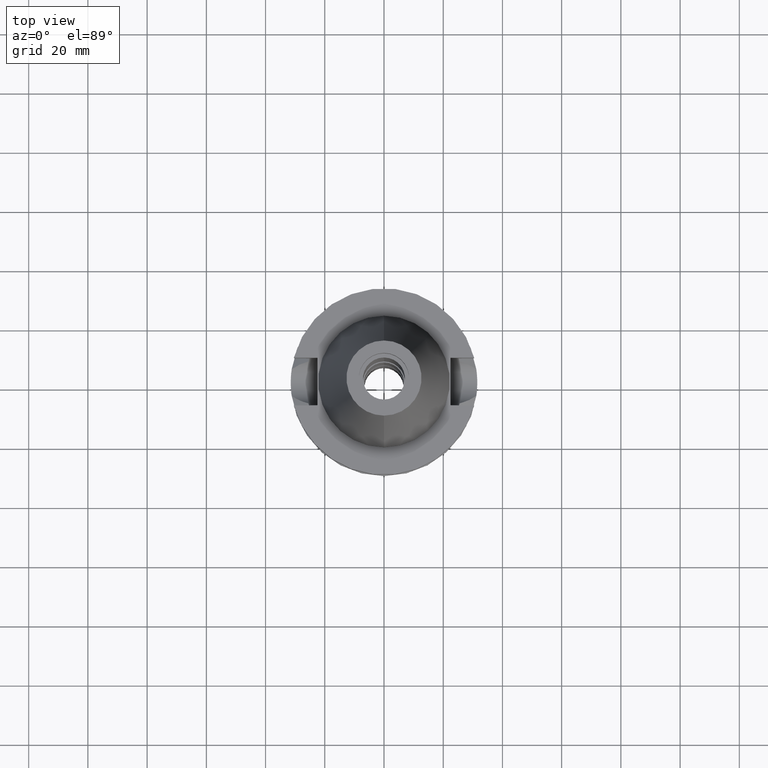
[diagram: clean part render]
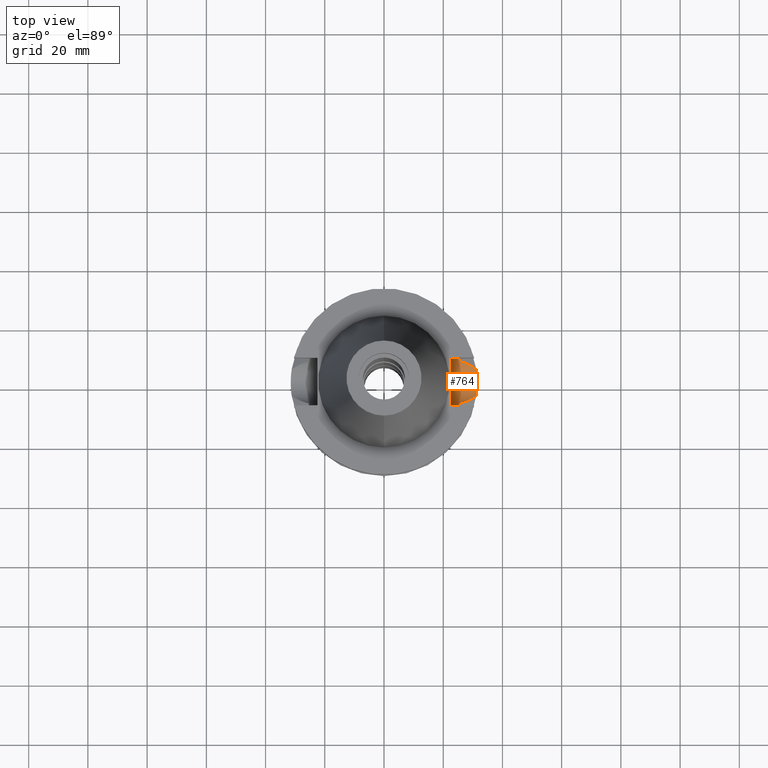
[diagram: same view with one face highlighted and labeled with its STEP entity id]
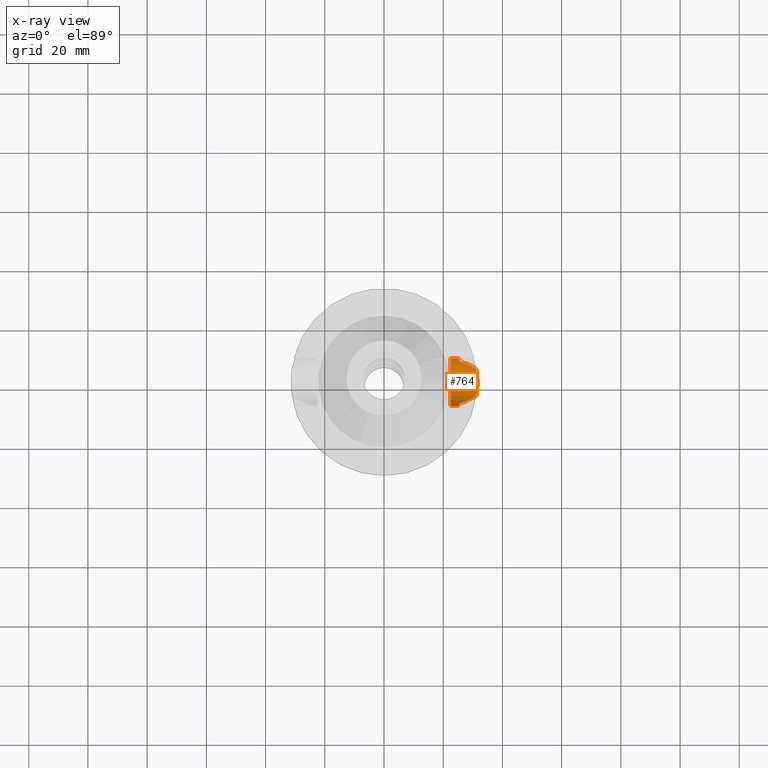
[diagram: x-ray of the same camera — body ghosted, the highlighted face saturated]
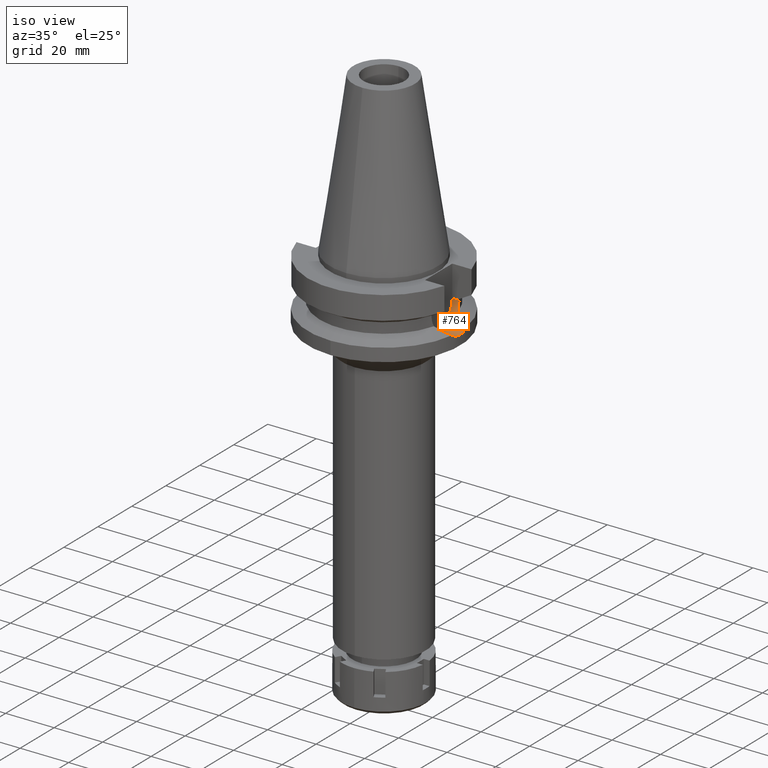
[diagram: same view with one face highlighted and labeled with its STEP entity id]
A machine part, top view. The second image highlights one B-rep face of the part: STEP entity #764.
The next image is the same camera in x-ray: the body ghosted, the highlighted face saturated — about 0% of this face is hidden behind the body in this view.
A second angle (iso view) of the same face is appended — the face is thin or edge-on in the first view.
In plain terms, the highlighted cylindrical surface (edge-blend (fillet) strip) has radius 8.05 mm, axis along (1, 0, 0).
Its self-contained STEP definition (entity closure, byte-faithful):
#15 = CARTESIAN_POINT ( 'NONE',  ( 25.53175183775000079, 7.097862220092999941, -18.74774300138999905 ) ) ;
#54 = CARTESIAN_POINT ( 'NONE',  ( 31.47112637481176023, -1.555232884586633446, -22.89002501789733302 ) ) ;
#62 = B_SPLINE_CURVE_WITH_KNOTS ( 'NONE', 3,
 ( #1560, #1265, #1227, #2415, #2399, #121, #674, #2681, #3191, #1762, #3535, #1483, #999, #2667, #2139, #153 ),
 .UNSPECIFIED., .F., .F.,
 ( 4, 2, 2, 1, 1, 1, 1, 2, 2, 4 ),
 ( 0.0000000000000000000, 0.2500000000000198730, 0.3750000000000299205, 0.4375000000000353606, 0.4687500000000382472, 0.4843750000000391354, 0.4921875000000386913, 0.4960937500000388023, 0.5000000000000389688, 1.000000000000000000 ),
 .UNSPECIFIED. ) ;
#85 = CARTESIAN_POINT ( 'NONE',  ( 25.24772266957999989, -8.050000000000000711, -15.27000127552688902 ) ) ;
#101 = B_SPLINE_CURVE_WITH_KNOTS ( 'NONE', 3,
 ( #986, #643, #3488, #1269, #3155, #2403, #2347, #1824, #3523, #1770, #2651, #950, #2611, #3443, #1255 ),
 .UNSPECIFIED., .F., .F.,
 ( 4, 2, 2, 1, 1, 1, 2, 2, 4 ),
 ( 0.0000000000000000000, 0.2500000000000069389, 0.3750000000000104361, 0.4375000000000123790, 0.4687500000000129341, 0.4843750000000133782, 0.4921875000000133227, 0.5000000000000132117, 1.000000000000000000 ),
 .UNSPECIFIED. ) ;
#121 = CARTESIAN_POINT ( 'NONE',  ( 29.21085116972555795, 5.704192111296421785, -20.63084312565968759 ) ) ;
#125 = CARTESIAN_POINT ( 'NONE',  ( 31.17899877608999759, -4.485536235554000051, -21.63449434733000132 ) ) ;
#140 = CARTESIAN_POINT ( 'NONE',  ( 25.32844325893252702, 7.792538688759799825, -16.96970524096439448 ) ) ;
#142 = DIRECTION ( 'NONE',  ( 0.0000000000000000000, 1.000000000000000000, 0.0000000000000000000 ) ) ;
#153 = CARTESIAN_POINT ( 'NONE',  ( 25.53175183775000079, 7.097862220092999941, -18.74774300138999905 ) ) ;
#195 = CARTESIAN_POINT ( 'NONE',  ( 25.48481820018147914, 7.266687417059683796, -18.43221401827393890 ) ) ;
#239 = CARTESIAN_POINT ( 'NONE',  ( 25.31205759391835386, -7.845621557329836016, -16.75326793494518540 ) ) ;
#247 = ORIENTED_EDGE ( 'NONE', *, *, #2168, .T. ) ;
#261 = VERTEX_POINT ( 'NONE', #575 ) ;
#309 = CARTESIAN_POINT ( 'NONE',  ( 25.29454717857531776, -7.902012029789245773, -16.48868902742446707 ) ) ;
#325 = VERTEX_POINT ( 'NONE', #668 ) ;
#345 = CARTESIAN_POINT ( 'NONE',  ( 29.65997400124294359, -5.506722762159368401, -20.86030669506162738 ) ) ;
#347 = CARTESIAN_POINT ( 'NONE',  ( 31.50000000000000000, 0.0000000000000000000, -23.00000000000000000 ) ) ;
#348 = ORIENTED_EDGE ( 'NONE', *, *, #888, .T. ) ;
#358 = CARTESIAN_POINT ( 'NONE',  ( 25.24772266958000344, 8.050000000000000711, -14.94999999999999929 ) ) ;
#396 = CARTESIAN_POINT ( 'NONE',  ( 25.33292553851903151, 7.777985707518505265, -17.02558215514781992 ) ) ;
#421 = DIRECTION ( 'NONE',  ( -1.000000000000000000, -1.551559937893000172E-14, 0.0000000000000000000 ) ) ;
#477 = CARTESIAN_POINT ( 'NONE',  ( 25.44392473217112283, 7.408251102527441567, -18.11706870839242001 ) ) ;
#549 = B_SPLINE_CURVE_WITH_KNOTS ( 'NONE', 3,
 ( #2033, #1991, #590, #1718, #2831, #1748, #2561, #2860, #2296, #2311, #3125, #610, #345, #2973, #125 ),
 .UNSPECIFIED., .F., .F.,
 ( 4, 2, 2, 1, 1, 1, 2, 2, 4 ),
 ( 0.0000000000000000000, 0.2500000000000026090, 0.3750000000000038858, 0.4375000000000052180, 0.4687500000000055511, 0.4843750000000054956, 0.4921875000000055511, 0.5000000000000055511, 1.000000000000000000 ),
 .UNSPECIFIED. ) ;
#575 = CARTESIAN_POINT ( 'NONE',  ( 25.24772266958000344, 8.050000000000000711, -14.94999999999999929 ) ) ;
#590 = CARTESIAN_POINT ( 'NONE',  ( 26.70216517171956738, -6.750112160821164053, -19.34857020071837042 ) ) ;
#610 = CARTESIAN_POINT ( 'NONE',  ( 28.66899793700921961, -5.966391300145325260, -20.35414521484774397 ) ) ;
#616 = ORIENTED_EDGE ( 'NONE', *, *, #782, .T. ) ;
#643 = CARTESIAN_POINT ( 'NONE',  ( 31.50000000000000000, 0.3826895716439381867, -23.00000000000000000 ) ) ;
#644 = CARTESIAN_POINT ( 'NONE',  ( 31.35447971217453045, -3.025805951013257111, -22.41205623289900117 ) ) ;
#652 = VERTEX_POINT ( 'NONE', #1473 ) ;
#661 = CARTESIAN_POINT ( 'NONE',  ( 25.36818304348079778, -7.663708172131628693, -17.48836484279746628 ) ) ;
#668 = CARTESIAN_POINT ( 'NONE',  ( 31.50000000000000000, 0.0000000000000000000, -23.00000000000000000 ) ) ;
#671 = EDGE_CURVE ( 'NONE', #1782, #2591, #2360, .T. ) ;
#674 = CARTESIAN_POINT ( 'NONE',  ( 29.03150699118772238, 5.794475058409061852, -20.53923543111471872 ) ) ;
#692 = EDGE_CURVE ( 'NONE', #2591, #2912, #549, .T. ) ;
#694 = CYLINDRICAL_SURFACE ( 'NONE', #1621, 8.050000000000000711 ) ;
#764 = ADVANCED_FACE ( 'NONE', ( #1564 ), #694, .F. ) ;
#782 = EDGE_CURVE ( 'NONE', #1018, #652, #3141, .T. ) ;
#888 = EDGE_CURVE ( 'NONE', #3359, #261, #2182, .T. ) ;
#889 = EDGE_CURVE ( 'NONE', #1087, #3359, #62, .T. ) ;
#893 = CARTESIAN_POINT ( 'NONE',  ( 25.30215616128704781, -7.877576232114722465, -16.61085564858986174 ) ) ;
#928 = CARTESIAN_POINT ( 'NONE',  ( 31.17899877608999759, -4.485536235554000051, -21.63449434733000132 ) ) ;
#945 = CARTESIAN_POINT ( 'NONE',  ( 25.27269246206562414, 7.973290322427805776, -16.24535685338602775 ) ) ;
#950 = CARTESIAN_POINT ( 'NONE',  ( 31.41414960750311991, 2.322543565508484953, -22.65768531844235767 ) ) ;
#986 = CARTESIAN_POINT ( 'NONE',  ( 31.50000000000000000, 0.0000000000000000000, -23.00000000000000000 ) ) ;
#997 = ORIENTED_EDGE ( 'NONE', *, *, #2922, .T. ) ;
#999 = CARTESIAN_POINT ( 'NONE',  ( 28.60310451449937830, 5.996791034035789281, -20.32038350626434209 ) ) ;
#1018 = VERTEX_POINT ( 'NONE', #3450 ) ;
#1024 = DIRECTION ( 'NONE',  ( 1.000000000000000000, 0.0000000000000000000, 0.0000000000000000000 ) ) ;
#1087 = VERTEX_POINT ( 'NONE', #3512 ) ;
#1142 = DIRECTION ( 'NONE',  ( 1.000000000000000000, -1.551559937893000172E-14, 0.0000000000000000000 ) ) ;
#1162 = CARTESIAN_POINT ( 'NONE',  ( 25.32121872273786067, -7.815971166074226595, -16.87703378351241312 ) ) ;
#1201 = CARTESIAN_POINT ( 'NONE',  ( 31.37853342739379414, -2.762293134456183186, -22.51181577786511667 ) ) ;
#1214 = CARTESIAN_POINT ( 'NONE',  ( 25.25396593744603990, -8.030896968456843865, -15.59377931114970828 ) ) ;
#1227 = CARTESIAN_POINT ( 'NONE',  ( 30.43282710722239415, 5.016779324950453756, -21.25451706853782952 ) ) ;
#1255 = CARTESIAN_POINT ( 'NONE',  ( 31.17899877608999759, 4.485536235554000051, -21.63449434733000132 ) ) ;
#1265 = CARTESIAN_POINT ( 'NONE',  ( 30.82503390680779987, 4.754078283610007283, -21.45429297012582026 ) ) ;
#1269 = CARTESIAN_POINT ( 'NONE',  ( 31.47112198569543295, 1.356918673325310687, -22.88726535037130105 ) ) ;
#1431 = LINE ( 'NONE', #2289, #2412 ) ;
#1434 = CARTESIAN_POINT ( 'NONE',  ( 25.31652055493196940, -7.831184758220203435, -16.81426458566332016 ) ) ;
#1436 = CARTESIAN_POINT ( 'NONE',  ( 31.23204570967797977, -4.116806569706299435, -21.88192522113526906 ) ) ;
#1453 = CARTESIAN_POINT ( 'NONE',  ( 25.31954463780458653, -7.821394976198483562, -16.85491936549449221 ) ) ;
#1473 = CARTESIAN_POINT ( 'NONE',  ( 22.50000000000000000, -8.050000000000000711, -14.94999999999999929 ) ) ;
#1483 = CARTESIAN_POINT ( 'NONE',  ( 28.61213870380262847, 5.992655446903430771, -20.32499861730867963 ) ) ;
#1502 = CARTESIAN_POINT ( 'NONE',  ( 25.35411833098577716, 7.708843546321432427, -17.27003765534289670 ) ) ;
#1560 = CARTESIAN_POINT ( 'NONE',  ( 31.17899877608999759, 4.485536235554000051, -21.63449434733000132 ) ) ;
#1564 = FACE_OUTER_BOUND ( 'NONE', #1793, .T. ) ;
#1580 = CARTESIAN_POINT ( 'NONE',  ( 25.24772266958000344, -8.050000000000000711, -14.94999999999999929 ) ) ;
#1604 = CARTESIAN_POINT ( 'NONE',  ( 25.53175183775000079, 7.097862220092999941, -18.74774300138999905 ) ) ;
#1621 = AXIS2_PLACEMENT_3D ( 'NONE', #2088, #1024, #1822 ) ;
#1718 = CARTESIAN_POINT ( 'NONE',  ( 27.49028814293527745, -6.463060836888286254, -19.75193483059269184 ) ) ;
#1735 = CARTESIAN_POINT ( 'NONE',  ( 31.41021000377876859, -2.375210906904595909, -22.64161853891571496 ) ) ;
#1748 = CARTESIAN_POINT ( 'NONE',  ( 28.10719638372104612, -6.214739352272188100, -20.06721273130204608 ) ) ;
#1762 = CARTESIAN_POINT ( 'NONE',  ( 28.65162143912110437, 5.974517825732180043, -20.34516845416354869 ) ) ;
#1770 = CARTESIAN_POINT ( 'NONE',  ( 31.41694045739201613, 2.284469817409785719, -22.66905814170703337 ) ) ;
#1771 = CARTESIAN_POINT ( 'NONE',  ( 31.40779731680367348, -2.407006719592561961, -22.63177601702364328 ) ) ;
#1782 = VERTEX_POINT ( 'NONE', #2426 ) ;
#1789 = CARTESIAN_POINT ( 'NONE',  ( 25.28049982587672062, -7.946985634402431664, -16.24435369772057314 ) ) ;
#1792 = CARTESIAN_POINT ( 'NONE',  ( 31.27810087216741053, -3.746788053984010602, -22.08602560499992862 ) ) ;
#1793 = EDGE_LOOP ( 'NONE', ( #3465, #348, #2397, #616, #2152, #1914, #2710, #247, #997 ) ) ;
#1819 = VECTOR ( 'NONE', #421, 1000.000000000000000 ) ;
#1822 = DIRECTION ( 'NONE',  ( 0.0000000000000000000, 0.0000000000000000000, -1.000000000000000000 ) ) ;
#1824 = CARTESIAN_POINT ( 'NONE',  ( 31.42560527174269325, 2.162789075934695937, -22.70431026641033867 ) ) ;
#1840 = DIRECTION ( 'NONE',  ( -1.000000000000000000, 0.0000000000000000000, 0.0000000000000000000 ) ) ;
#1914 = ORIENTED_EDGE ( 'NONE', *, *, #671, .T. ) ;
#1991 = CARTESIAN_POINT ( 'NONE',  ( 26.13688895568178339, -6.931520395815643276, -19.05863063905066923 ) ) ;
#2033 = CARTESIAN_POINT ( 'NONE',  ( 25.53175183775000079, -7.097862220092999941, -18.74774300138999905 ) ) ;
#2035 = CARTESIAN_POINT ( 'NONE',  ( 31.38990480646292625, -2.631663213980622196, -22.55863313253222202 ) ) ;
#2065 = CARTESIAN_POINT ( 'NONE',  ( 25.24772266957998923, 8.049999999999998934, -15.58999073683360237 ) ) ;
#2088 = CARTESIAN_POINT ( 'NONE',  ( 22.50000000000000000, 0.0000000000000000000, -14.94999999999999929 ) ) ;
#2093 = B_SPLINE_CURVE_WITH_KNOTS ( 'NONE', 3,
 ( #3128, #1436, #1792, #3157, #644, #1201, #2035, #2563, #1771, #1735, #2313, #2847, #54, #2885, #347 ),
 .UNSPECIFIED., .F., .F.,
 ( 4, 2, 2, 1, 1, 1, 2, 2, 4 ),
 ( 0.0000000000000000000, 0.2500000000000003886, 0.3750000000000005551, 0.4375000000000002776, 0.4687500000000004996, 0.4843750000000003331, 0.4921875000000000555, 0.4999999999999997780, 1.000000000000000000 ),
 .UNSPECIFIED. ) ;
#2120 = CARTESIAN_POINT ( 'NONE',  ( 25.34387967354658855, 7.742345491376021016, -17.15662736174668979 ) ) ;
#2139 = CARTESIAN_POINT ( 'NONE',  ( 26.70462913958104778, 6.775458347885716215, -19.35030569804932910 ) ) ;
#2152 = ORIENTED_EDGE ( 'NONE', *, *, #3517, .F. ) ;
#2168 = EDGE_CURVE ( 'NONE', #2912, #325, #2093, .T. ) ;
#2182 = B_SPLINE_CURVE_WITH_KNOTS ( 'NONE', 3,
 ( #1604, #195, #477, #2898, #2914, #1502, #2120, #396, #140, #3520, #3210, #945, #2065, #358 ),
 .UNSPECIFIED., .F., .F.,
 ( 4, 2, 2, 1, 1, 2, 2, 4 ),
 ( 0.0000000000000000000, 0.2499999999999773515, 0.3749999999999648059, 0.4374999999999586997, 0.4687499999999569789, 0.4843749999999561462, 0.4999999999999552580, 1.000000000000000000 ),
 .UNSPECIFIED. ) ;
#2289 = CARTESIAN_POINT ( 'NONE',  ( 22.50000000000000000, 8.050000000000000711, -14.94999999999999929 ) ) ;
#2295 = LINE ( 'NONE', #1580, #1819 ) ;
#2296 = CARTESIAN_POINT ( 'NONE',  ( 28.58620329395439086, -6.004467380010752642, -20.31185820627054994 ) ) ;
#2311 = CARTESIAN_POINT ( 'NONE',  ( 28.62833740050830755, -5.985134629174800658, -20.33337777247906075 ) ) ;
#2313 = CARTESIAN_POINT ( 'NONE',  ( 31.41180480595923186, -2.354042824019156654, -22.64812347154514427 ) ) ;
#2347 = CARTESIAN_POINT ( 'NONE',  ( 31.43705495319547438, 1.992185818798754005, -22.75073800056819451 ) ) ;
#2360 = B_SPLINE_CURVE_WITH_KNOTS ( 'NONE', 3,
 ( #2883, #85, #1214, #3176, #1789, #309, #893, #239, #1434, #1453, #1162, #661, #2575, #2543 ),
 .UNSPECIFIED., .F., .F.,
 ( 4, 2, 2, 1, 1, 2, 2, 4 ),
 ( 0.0000000000000000000, 0.2499999999999805156, 0.3749999999999708011, 0.4374999999999658051, 0.4687499999999645839, 0.4843749999999652500, 0.4999999999999659162, 1.000000000000000000 ),
 .UNSPECIFIED. ) ;
#2397 = ORIENTED_EDGE ( 'NONE', *, *, #3251, .F. ) ;
#2399 = CARTESIAN_POINT ( 'NONE',  ( 29.56236916486940913, 5.521575068834569500, -20.81036294123060415 ) ) ;
#2403 = CARTESIAN_POINT ( 'NONE',  ( 31.44585372317890304, 1.845677893392021485, -22.78619768337938112 ) ) ;
#2412 = VECTOR ( 'NONE', #1142, 1000.000000000000000 ) ;
#2415 = CARTESIAN_POINT ( 'NONE',  ( 29.78715401238950022, 5.397096488082839372, -20.92511314236037379 ) ) ;
#2426 = CARTESIAN_POINT ( 'NONE',  ( 25.24772266958000344, -8.050000000000000711, -14.94999999999999929 ) ) ;
#2453 = AXIS2_PLACEMENT_3D ( 'NONE', #3232, #1840, #142 ) ;
#2543 = CARTESIAN_POINT ( 'NONE',  ( 25.53175183775000079, -7.097862220092999941, -18.74774300138999905 ) ) ;
#2561 = CARTESIAN_POINT ( 'NONE',  ( 28.28554232876215835, -6.138951658662898936, -20.15830785867306929 ) ) ;
#2563 = CARTESIAN_POINT ( 'NONE',  ( 31.40202432793105913, -2.481499150903779594, -22.60820932357348312 ) ) ;
#2575 = CARTESIAN_POINT ( 'NONE',  ( 25.43788636140663684, -7.435506143574531990, -18.11669712823283618 ) ) ;
#2591 = VERTEX_POINT ( 'NONE', #2711 ) ;
#2611 = CARTESIAN_POINT ( 'NONE',  ( 31.36321233040693812, 3.008498623055367638, -22.44996234363651411 ) ) ;
#2651 = CARTESIAN_POINT ( 'NONE',  ( 31.41516378268383747, 2.308787884463406215, -22.66181946406065961 ) ) ;
#2667 = CARTESIAN_POINT ( 'NONE',  ( 27.72614732591717868, 6.397519868641032836, -19.87239171915062030 ) ) ;
#2681 = CARTESIAN_POINT ( 'NONE',  ( 28.81599804953653177, 5.897862411624451795, -20.42914168331959957 ) ) ;
#2710 = ORIENTED_EDGE ( 'NONE', *, *, #692, .T. ) ;
#2711 = CARTESIAN_POINT ( 'NONE',  ( 25.53175183775000079, -7.097862220092999941, -18.74774300138999905 ) ) ;
#2831 = CARTESIAN_POINT ( 'NONE',  ( 27.74303057453368027, -6.364879248160955960, -19.88114769325064657 ) ) ;
#2847 = CARTESIAN_POINT ( 'NONE',  ( 31.41247682364817351, -2.345069939856828878, -22.65086411840905356 ) ) ;
#2860 = CARTESIAN_POINT ( 'NONE',  ( 28.48707291875982150, -6.049459561318027312, -20.26123045420478874 ) ) ;
#2883 = CARTESIAN_POINT ( 'NONE',  ( 25.24772266958000344, -8.050000000000000711, -14.94999999999999929 ) ) ;
#2885 = CARTESIAN_POINT ( 'NONE',  ( 31.50000000000000000, -0.7653601864933333720, -23.00000000000000711 ) ) ;
#2898 = CARTESIAN_POINT ( 'NONE',  ( 25.39164478449283635, 7.584820969905358368, -17.65194245033610088 ) ) ;
#2912 = VERTEX_POINT ( 'NONE', #928 ) ;
#2914 = CARTESIAN_POINT ( 'NONE',  ( 25.37572817765628841, 7.637723572231249314, -17.49814693643546448 ) ) ;
#2922 = EDGE_CURVE ( 'NONE', #325, #1087, #101, .T. ) ;
#2973 = CARTESIAN_POINT ( 'NONE',  ( 30.49155901906867427, -5.007075225116071948, -21.28452291877360025 ) ) ;
#3125 = CARTESIAN_POINT ( 'NONE',  ( 28.65634895155356077, -5.972235191147297506, -20.34768465105092261 ) ) ;
#3128 = CARTESIAN_POINT ( 'NONE',  ( 31.17899877608999759, -4.485536235554000051, -21.63449434733000132 ) ) ;
#3141 = CIRCLE ( 'NONE', #2453, 8.050000000000000711 ) ;
#3155 = CARTESIAN_POINT ( 'NONE',  ( 31.46209760622523177, 1.552528018158971346, -22.85140752204677028 ) ) ;
#3157 = CARTESIAN_POINT ( 'NONE',  ( 31.33669595925373130, -3.204496347022704583, -22.33738104480140763 ) ) ;
#3176 = CARTESIAN_POINT ( 'NONE',  ( 25.27269574104416350, -7.971769475022774998, -16.08146184953516311 ) ) ;
#3191 = CARTESIAN_POINT ( 'NONE',  ( 28.70667506203834662, 5.949051658170535717, -20.37329293991690804 ) ) ;
#3210 = CARTESIAN_POINT ( 'NONE',  ( 25.32419265906722927, 7.806329682138427373, -16.91574545218137615 ) ) ;
#3232 = CARTESIAN_POINT ( 'NONE',  ( 22.50000000000000000, 0.0000000000000000000, -14.94999999999999929 ) ) ;
#3251 = EDGE_CURVE ( 'NONE', #1018, #261, #1431, .T. ) ;
#3359 = VERTEX_POINT ( 'NONE', #15 ) ;
#3443 = CARTESIAN_POINT ( 'NONE',  ( 31.28508993674152805, 3.748095716867494431, -22.12934347073121799 ) ) ;
#3450 = CARTESIAN_POINT ( 'NONE',  ( 22.50000000000000000, 8.050000000000000711, -14.94999999999999929 ) ) ;
#3465 = ORIENTED_EDGE ( 'NONE', *, *, #889, .T. ) ;
#3488 = CARTESIAN_POINT ( 'NONE',  ( 31.49278049642385824, 0.7713483626256416592, -22.97266538105445832 ) ) ;
#3512 = CARTESIAN_POINT ( 'NONE',  ( 31.17899877608999759, 4.485536235554000051, -21.63449434733000132 ) ) ;
#3517 = EDGE_CURVE ( 'NONE', #1782, #652, #2295, .T. ) ;
#3520 = CARTESIAN_POINT ( 'NONE',  ( 25.32550226136618932, 7.802082245155967932, -16.93251888162995655 ) ) ;
#3523 = CARTESIAN_POINT ( 'NONE',  ( 31.41958431856492595, 2.247983644794284253, -22.67982499013486475 ) ) ;
#3535 = CARTESIAN_POINT ( 'NONE',  ( 28.62794300162053673, 5.985404119070321549, -20.33307226152385994 ) ) ;